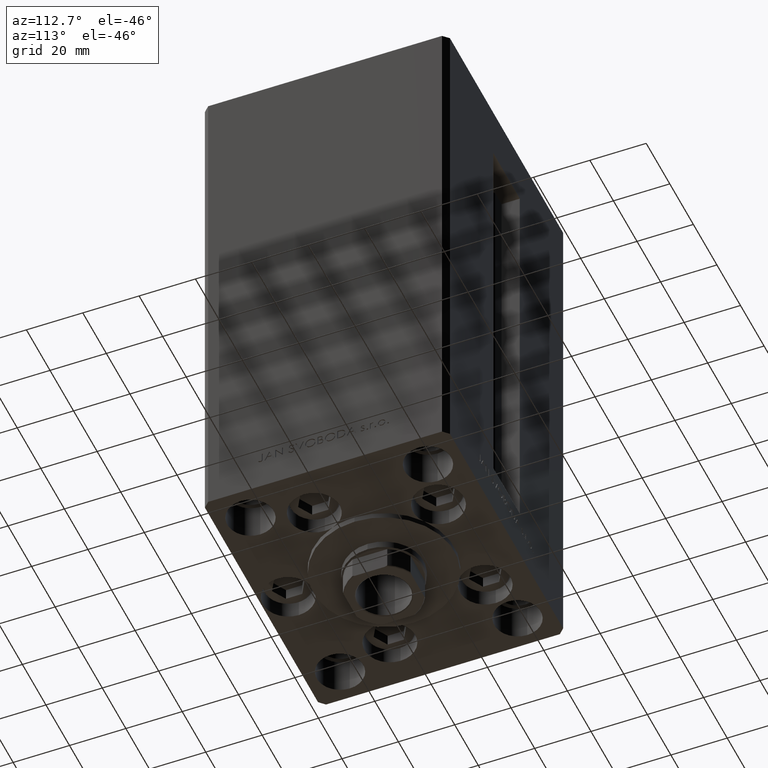
[diagram: clean part render]
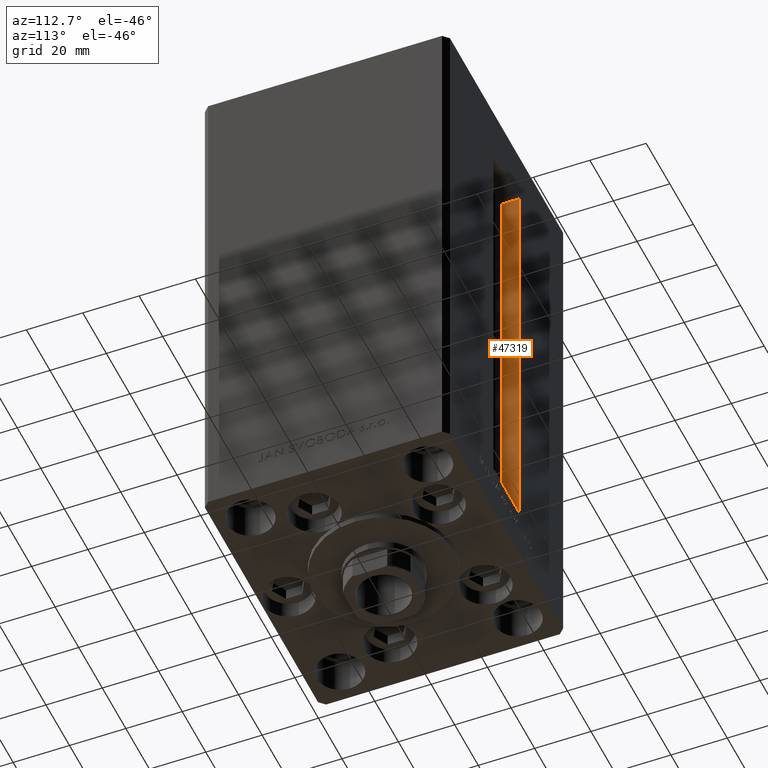
[diagram: same view with one face highlighted and labeled with its STEP entity id]
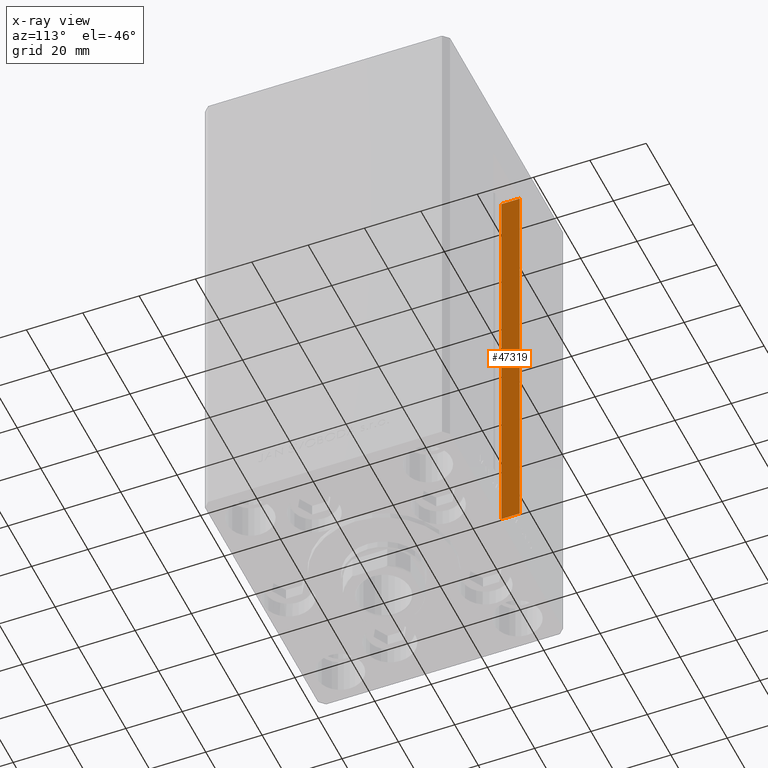
[diagram: x-ray of the same camera — body ghosted, the highlighted face saturated]
A machine part, auxiliary view. The second image highlights one B-rep face of the part: STEP entity #47319.
The next image is the same camera in x-ray: the body ghosted, the highlighted face saturated — about 0% of this face is hidden behind the body in this view.
In plain terms, the highlighted planar face has unit normal (-1, 0, 0).
Its self-contained STEP definition (entity closure, byte-faithful):
#484 = DIRECTION ( 'NONE',  ( -0.000000000000000000, -0.000000000000000000, 1.000000000000000000 ) ) ;
#981 = CARTESIAN_POINT ( 'NONE',  ( -11.24999999999999822, 36.99999999999999289, 0.000000000000000000 ) ) ;
#1031 = DIRECTION ( 'NONE',  ( -0.000000000000000000, -0.000000000000000000, 1.000000000000000000 ) ) ;
#2741 = ORIENTED_EDGE ( 'NONE', *, *, #15257, .F. ) ;
#3903 = DIRECTION ( 'NONE',  ( -0.000000000000000000, -1.000000000000000000, -0.000000000000000000 ) ) ;
#4017 = VERTEX_POINT ( 'NONE', #23730 ) ;
#4618 = VECTOR ( 'NONE', #484, 1000.000000000000000 ) ;
#5283 = DIRECTION ( 'NONE',  ( 0.000000000000000000, 1.000000000000000000, 0.000000000000000000 ) ) ;
#6681 = DIRECTION ( 'NONE',  ( -1.000000000000000000, 0.000000000000000000, 0.000000000000000000 ) ) ;
#6970 = ORIENTED_EDGE ( 'NONE', *, *, #18852, .F. ) ;
#14198 = ORIENTED_EDGE ( 'NONE', *, *, #21764, .F. ) ;
#14619 = PLANE ( 'NONE',  #40428 ) ;
#15257 = EDGE_CURVE ( 'NONE', #4017, #41892, #19397, .T. ) ;
#16384 = CARTESIAN_POINT ( 'NONE',  ( -11.24999999999999822, 36.99999999999999289, 148.5000000000000000 ) ) ;
#17326 = VECTOR ( 'NONE', #5283, 1000.000000000000000 ) ;
#18852 = EDGE_CURVE ( 'NONE', #41892, #42744, #39098, .T. ) ;
#19397 = LINE ( 'NONE', #981, #4618 ) ;
#21764 = EDGE_CURVE ( 'NONE', #39585, #4017, #30001, .T. ) ;
#21852 = DIRECTION ( 'NONE',  ( 0.000000000000000000, 0.000000000000000000, 1.000000000000000000 ) ) ;
#22093 = CARTESIAN_POINT ( 'NONE',  ( -11.24999999999999822, 36.99999999999999289, 0.000000000000000000 ) ) ;
#23730 = CARTESIAN_POINT ( 'NONE',  ( -11.24999999999999822, 36.99999999999999289, 0.000000000000000000 ) ) ;
#24764 = VECTOR ( 'NONE', #1031, 1000.000000000000000 ) ;
#25806 = FACE_OUTER_BOUND ( 'NONE', #39637, .T. ) ;
#26269 = CARTESIAN_POINT ( 'NONE',  ( -11.24999999999999822, 36.99999999999999289, 0.000000000000000000 ) ) ;
#26522 = CARTESIAN_POINT ( 'NONE',  ( -11.24999999999999822, 43.50000000000000000, 0.000000000000000000 ) ) ;
#26759 = ORIENTED_EDGE ( 'NONE', *, *, #31757, .T. ) ;
#30001 = LINE ( 'NONE', #26269, #38850 ) ;
#31757 = EDGE_CURVE ( 'NONE', #39585, #42744, #34595, .T. ) ;
#31895 = CARTESIAN_POINT ( 'NONE',  ( -11.24999999999999822, 0.000000000000000000, 148.5000000000000000 ) ) ;
#34595 = LINE ( 'NONE', #45775, #24764 ) ;
#38850 = VECTOR ( 'NONE', #3903, 1000.000000000000000 ) ;
#39098 = LINE ( 'NONE', #31895, #17326 ) ;
#39585 = VERTEX_POINT ( 'NONE', #26522 ) ;
#39637 = EDGE_LOOP ( 'NONE', ( #2741, #14198, #26759, #6970 ) ) ;
#40398 = CARTESIAN_POINT ( 'NONE',  ( -11.24999999999999822, 43.50000000000000000, 148.5000000000000000 ) ) ;
#40428 = AXIS2_PLACEMENT_3D ( 'NONE', #22093, #6681, #21852 ) ;
#41892 = VERTEX_POINT ( 'NONE', #16384 ) ;
#42744 = VERTEX_POINT ( 'NONE', #40398 ) ;
#45775 = CARTESIAN_POINT ( 'NONE',  ( -11.24999999999999822, 43.50000000000000000, 0.000000000000000000 ) ) ;
#47319 = ADVANCED_FACE ( 'NONE', ( #25806 ), #14619, .F. ) ;